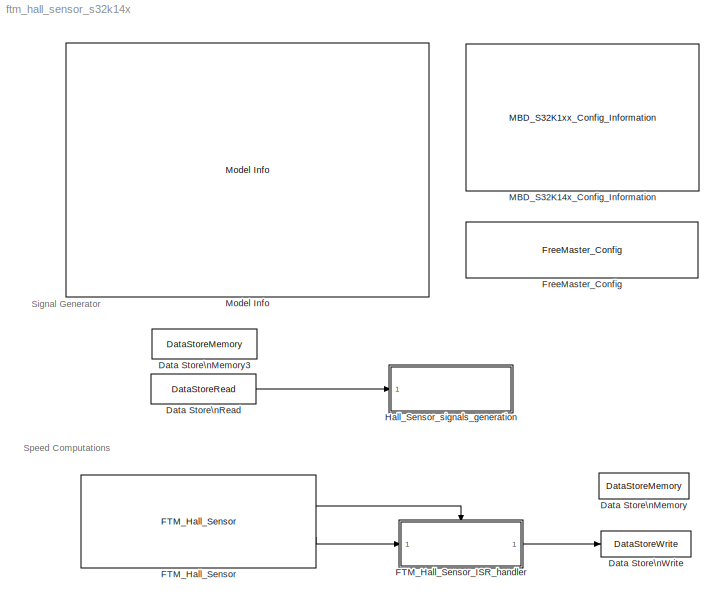
MODEL ftm_hall_sensor_s32k14x
KIND model
CONFIG InitFcn = mbd_s32k_consistency_checks(bdroot(gcs));
BLOCK [DataStoreMemory] Data Store\nMemory
  DataStoreName = Motor_Speed
  OutDataTypeStr = single
  ReadBeforeWriteMsg = warning
  SID = 96
  ShowAdditionalParam = off
  WriteAfterReadMsg = warning
  WriteAfterWriteMsg = warning
BLOCK [DataStoreMemory] Data Store\nMemory3
  DataStoreName = Speed_Command
  InitialValue = 1000
  OutDataTypeStr = single
  ReadBeforeWriteMsg = warning
  SID = 230
  ShowAdditionalParam = off
  WriteAfterReadMsg = warning
  WriteAfterWriteMsg = warning
BLOCK [DataStoreRead] Data Store\nRead
  DataStoreName = Speed_Command
  Ports = [0, 1]
  SID = 231
BLOCK [DataStoreWrite] Data Store\nWrite
  DataStoreElements = Motor_Speed
  DataStoreName = Motor_Speed
  Ports = [1]
  SID = 97
BLOCK [Reference] FTM_Hall_Sensor  REF=mbd_s32k1xx_ec_toolbox/Motor Control Blocks/FTM Blocks/FTM_Hall_Sensor
  Ports = [0, 2]
  Priority = 1
  SID = 99
  SourceBlock = mbd_s32k1xx_ec_toolbox/Motor Control Blocks/FTM Blocks/FTM_Hall_Sensor
  SourceType = FTM_s32k_hall_sensor_block
  e_mode = Rising or Falling
  filter_en = off
  filter_value = 0
  isrlevel = 2
  max_period = 0.10486
  mcuTargetUpdate = on
  pinFtm1Ch1 = PTA1: [FTM1_CH1 | FTM Channel]
  pinFtm2Ch0 = PTD10: [FTM2_CH0 | FTM Channel]
  pinFtm2Ch1 = PTD11: [FTM2_CH1 | FTM Channel]
  prescaler = 128
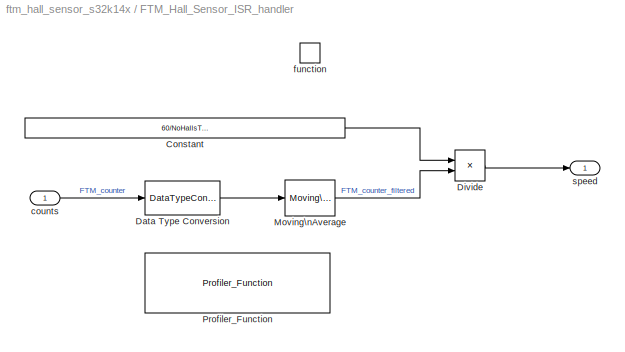
BLOCK [SubSystem] FTM_Hall_Sensor_ISR_handler
  Ports = [1, 1, 0, 1]
  RTWSystemCode = Nonreusable function
  RequestExecContextInheritance = off
  SID = 76
  TreatAsAtomicUnit = on
  Variant = off
BLOCK [Constant] FTM_Hall_Sensor_ISR_handler/Constant
  OutDataTypeStr = single
  SID = 175
  Value = 60/NoHallsTrans*EdgeMode*ClockFreq/(PP*ClockPrescaler)
BLOCK [DataTypeConversion] FTM_Hall_Sensor_ISR_handler/Data Type Conversion
  OutDataTypeStr = single
  RndMeth = Floor
  SID = 210
  SaturateOnIntegerOverflow = off
BLOCK [Product] FTM_Hall_Sensor_ISR_handler/Divide
  InputSameDT = off
  Inputs = */
  OutDataTypeStr = Inherit: Inherit via internal rule
  Ports = [2, 1]
  RndMeth = Floor
  SID = 174
  SaturateOnIntegerOverflow = off
BLOCK [Reference] FTM_Hall_Sensor_ISR_handler/Moving\nAverage  REF=dspstat3/Moving\nAverage
  ForgettingFactor = 0.9
  Method = Sliding window
  Ports = [1, 1]
  SID = 209
  SimulateUsing = Code generation
  SourceBlock = dspstat3/Moving\nAverage
  SourceProductBaseCode = DS
  SourceProductName = DSP System Toolbox
  SourceType = dsp.MovingAverage
  SpecifyWindowLength = on
  WindowLength = 12
BLOCK [Reference] FTM_Hall_Sensor_ISR_handler/Profiler_Function  REF=mbd_s32k1xx_ec_toolbox/Utility Blocks/Profiler_Function
  Ports = []
  SID = 247
  SourceBlock = mbd_s32k1xx_ec_toolbox/Utility Blocks/Profiler_Function
  SourceType = profiler_s32k_func
  profile_indx = 0
  showOut = off
BLOCK [Inport] FTM_Hall_Sensor_ISR_handler/counts
  IconDisplay = Port number
  SID = 182
BLOCK [TriggerPort] FTM_Hall_Sensor_ISR_handler/function
  Ports = []
  SID = 77
  StatesWhenEnabling = held
  TriggerType = function-call
  VariantControl = Variant
BLOCK [Outport] FTM_Hall_Sensor_ISR_handler/speed
  IconDisplay = Port number
  SID = 183
BLOCK [Reference] FreeMaster_Config  REF=mbd_s32k1xx_ec_toolbox/Utility Blocks/FreeMaster_Config
  Ports = []
  SID = 94
  SourceBlock = mbd_s32k1xx_ec_toolbox/Utility Blocks/FreeMaster_Config
  SourceType = fm_s32k_config
  baudrate = 115200
  comm_buffer_size = 255
  comm_buffer_size_auto = on
  comm_rqueue_size = 32
  comm_rqueue_size_default = on
  interface = LPUART1
  isr_prio = 10
  max_rec_vars = 8
  max_scope_vars = 8
  mode = Short Interrupt
  rec_buff_size = 1024
  rec_timebase = 10
  rec_timebase_unit = milliseconds
  rxd = PTC6: [LPUART1_RX | Receive]
  show_adv_opts = on
  txd = PTC7: [LPUART1_TX | Transmit]
  use_recorder = on
  use_scope = on
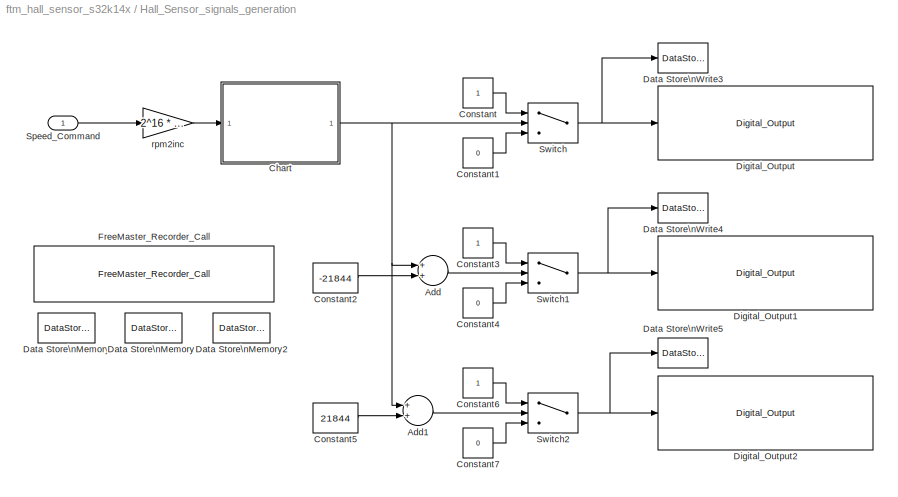
BLOCK [SubSystem] Hall_Sensor_signals_generation
  Ports = [1]
  RTWSystemCode = Nonreusable function
  RequestExecContextInheritance = off
  SID = 104
  TreatAsAtomicUnit = on
  Variant = off
BLOCK [Sum] Hall_Sensor_signals_generation/Add
  InputSameDT = off
  OutDataTypeStr = Inherit: Inherit via internal rule
  Ports = [2, 1]
  SID = 219
  SaturateOnIntegerOverflow = off
BLOCK [Sum] Hall_Sensor_signals_generation/Add1
  InputSameDT = off
  OutDataTypeStr = Inherit: Inherit via internal rule
  Ports = [2, 1]
  SID = 220
  SaturateOnIntegerOverflow = off
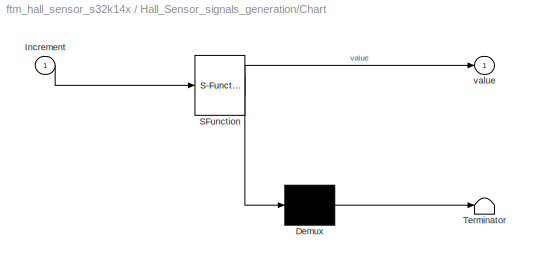
BLOCK [SubSystem] Hall_Sensor_signals_generation/Chart
  ErrorFcn = Stateflow.Translate.translate
  PermitHierarchicalResolution = ExplicitOnly
  Ports = [1, 1]
  RequestExecContextInheritance = off
  SFBlockType = Chart
  SID = 221
  TreatAsAtomicUnit = on
  Variant = off
BLOCK [Demux] Hall_Sensor_signals_generation/Chart/ Demux 
  Outputs = 1
  Ports = [1, 1]
  SID = 221::39
BLOCK [S-Function] Hall_Sensor_signals_generation/Chart/ SFunction 
  EnableBusSupport = off
  FunctionName = sf_sfun
  PortCounts = [1 2]
  Ports = [1, 2]
  SFcnIsStateOwnerBlock = off
  SFunctionDeploymentMode = off
  SID = 221::38
  Tag = Stateflow S-Function ftm_hall_sensor_s32k14x 5
BLOCK [Terminator] Hall_Sensor_signals_generation/Chart/ Terminator 
  SID = 221::40
BLOCK [Inport] Hall_Sensor_signals_generation/Chart/Increment
  IconDisplay = Port number
  SID = 221::37
BLOCK [Outport] Hall_Sensor_signals_generation/Chart/value
  IconDisplay = Port number
  SID = 221::5
BLOCK [Constant] Hall_Sensor_signals_generation/Constant
  SID = 222
BLOCK [Constant] Hall_Sensor_signals_generation/Constant1
  SID = 223
  Value = 0
BLOCK [Constant] Hall_Sensor_signals_generation/Constant2
  OutDataTypeStr = int16
  SID = 224
  Value = -21844
BLOCK [Constant] Hall_Sensor_signals_generation/Constant3
  SID = 225
BLOCK [Constant] Hall_Sensor_signals_generation/Constant4
  SID = 226
  Value = 0
BLOCK [Constant] Hall_Sensor_signals_generation/Constant5
  OutDataTypeStr = int16
  SID = 227
  Value = 21844
BLOCK [Constant] Hall_Sensor_signals_generation/Constant6
  SID = 228
BLOCK [Constant] Hall_Sensor_signals_generation/Constant7
  SID = 229
  Value = 0
BLOCK [DataStoreMemory] Hall_Sensor_signals_generation/Data Store\nMemory
  DataStoreName = Hall_A
  OutDataTypeStr = boolean
  ReadBeforeWriteMsg = warning
  SID = 124
  ShowAdditionalParam = off
  WriteAfterReadMsg = warning
  WriteAfterWriteMsg = warning
BLOCK [DataStoreMemory] Hall_Sensor_signals_generation/Data Store\nMemory1
  DataStoreName = Hall_B
  OutDataTypeStr = boolean
  ReadBeforeWriteMsg = warning
  SID = 125
  ShowAdditionalParam = off
  WriteAfterReadMsg = warning
  WriteAfterWriteMsg = warning
BLOCK [DataStoreMemory] Hall_Sensor_signals_generation/Data Store\nMemory2
  DataStoreName = Hall_C
  OutDataTypeStr = boolean
  ReadBeforeWriteMsg = warning
  SID = 126
  ShowAdditionalParam = off
  WriteAfterReadMsg = warning
  WriteAfterWriteMsg = warning
BLOCK [DataStoreWrite] Hall_Sensor_signals_generation/Data Store\nWrite3
  DataStoreName = Hall_A
  Ports = [1]
  SID = 127
BLOCK [DataStoreWrite] Hall_Sensor_signals_generation/Data Store\nWrite4
  DataStoreName = Hall_B
  Ports = [1]
  SID = 128
BLOCK [DataStoreWrite] Hall_Sensor_signals_generation/Data Store\nWrite5
  DataStoreName = Hall_C
  Ports = [1]
  SID = 129
BLOCK [Reference] Hall_Sensor_signals_generation/Digital_Output  REF=mbd_s32k1xx_ec_toolbox/GPIO Blocks/Digital_Output
  Ports = [1]
  SID = 108
  SourceBlock = mbd_s32k1xx_ec_toolbox/GPIO Blocks/Digital_Output
  SourceType = gpio_s32k_output
  drive_strength = Low
  gpio_pin = PTB14: [PTB14 | Port B I/O]
  init_val = Low
BLOCK [Reference] Hall_Sensor_signals_generation/Digital_Output1  REF=mbd_s32k1xx_ec_toolbox/GPIO Blocks/Digital_Output
  Ports = [1]
  SID = 109
  SourceBlock = mbd_s32k1xx_ec_toolbox/GPIO Blocks/Digital_Output
  SourceType = gpio_s32k_output
  drive_strength = Low
  gpio_pin = PTB15: [PTB15 | Port B I/O]
  init_val = Low
BLOCK [Reference] Hall_Sensor_signals_generation/Digital_Output2  REF=mbd_s32k1xx_ec_toolbox/GPIO Blocks/Digital_Output
  Ports = [1]
  SID = 114
  SourceBlock = mbd_s32k1xx_ec_toolbox/GPIO Blocks/Digital_Output
  SourceType = gpio_s32k_output
  drive_strength = Low
  gpio_pin = PTB16: [PTB16 | Port B I/O]
  init_val = Low
BLOCK [Reference] Hall_Sensor_signals_generation/FreeMaster_Recorder_Call  REF=mbd_s32k1xx_ec_toolbox/Utility Blocks/FreeMaster_Recorder_Call
  Ports = []
  SID = 135
  SourceBlock = mbd_s32k1xx_ec_toolbox/Utility Blocks/FreeMaster_Recorder_Call
  SourceType = fm_s32k_recorder_call
BLOCK [Inport] Hall_Sensor_signals_generation/Speed_Command
  IconDisplay = Port number
  SID = 235
BLOCK [Switch] Hall_Sensor_signals_generation/Switch
  InputSameDT = off
  OutDataTypeStr = Inherit: Inherit via back propagation
  SID = 232
  SaturateOnIntegerOverflow = off
BLOCK [Switch] Hall_Sensor_signals_generation/Switch1
  InputSameDT = off
  OutDataTypeStr = Inherit: Inherit via back propagation
  SID = 233
  SaturateOnIntegerOverflow = off
BLOCK [Switch] Hall_Sensor_signals_generation/Switch2
  InputSameDT = off
  OutDataTypeStr = Inherit: Inherit via back propagation
  SID = 234
  SaturateOnIntegerOverflow = off
BLOCK [Gain] Hall_Sensor_signals_generation/rpm2inc
  Gain = 2^16 * PP * 0.001 / 60
  OutDataTypeStr = Inherit: Inherit via back propagation
  ParamDataTypeStr = Inherit: Inherit via internal rule
  SID = 236
  SaturateOnIntegerOverflow = off
BLOCK [Reference] MBD_S32K14x_Config_Information  REF=mbd_s32k1xx_ec_toolbox/MBD_S32K1xx_Config_Information
  ADC_PcrCheckEnDis = on
  AMMCLIB_PcrCheckEnDis = on
  CMP_PcrCheckEnDis = on
  CSEc_PcrCheckEnDis = on
  ConfigParams_PcrCheckEnDis = on
  FM_PcrCheckEnDis = on
  FTM_Dual_Edge_Inputs_PcrCheckEnDis = on
  FTM_Hall_Sensor_Inputs_PcrCheckEnDis = on
  FTM_Input_Edge_Inputs_PcrCheckEnDis = on
  FTM_PWM_PcrCheckEnDis = on
  FTM_Quadrature_Inputs_PcrCheckEnDis = on
  FlexCAN_PcrCheckEnDis = on
  FlexIO_PcrCheckEnDis = on
  GPIO_InputPcrCheckEnDis = on
  GPIO_OutputPcrCheckEnDis = on
  LIN_PcrCheckEnDis = on
  LPI2C_PcrCheckEnDis = on
  LPSPI_PcrCheckEnDis = on
  LPTMR_PcrCheckEnDis = on
  LPUART_PcrCheckEnDis = on
  ModelRef_PcrCheckEnDis = on
  PDB0_PcrCheckEnDis = on
  PIT_PcrCheckEnDis = on
  Ports = []
  Profile_PcrCheckEnDis = on
  RTC_PcrCheckEnDis = on
  SBC_PcrCheckEnDis = on
  SID = 1
  SourceBlock = mbd_s32k1xx_ec_toolbox/MBD_S32K1xx_Config_Information
  SourceType = MBDTBX_EC_S32K
  WDOG_PcrCheckEnDis = on
  config_params = []
  disp_str = Target : S32K142-16KB_SRAM\nPackage : 100-pin\nSystem clock : 80 MHz\nXTAL clock : External 8 MHz\nCompiler : GCC\nTarget Type : FLASH\nDownload Code after build : (OpenSDA: E)\nStep Tick Interrupt Priority : 15
  ds_import_enable = on
  eDMA_PcrCheckEnDis = on
  gcc_target_assemble_opts = -mcpu=cortex-m4 -mthumb -mfloat-abi=hard -mfpu=fpv4-sp-d16 -g
  gcc_target_compile_opts = -mcpu=cortex-m4 -mthumb -mfloat-abi=hard -mfpu=fpv4-sp-d16 -O1 -g -gstrict-dwarf
  gcc_target_default_lcf = on
  gcc_target_link_opts = -mcpu=cortex-m4 -mthumb -mfloat-abi=hard -mfpu=fpv4-sp-d16
  gcc_target_user_lcf = S32K146_128_flash.ld
  ghs_target_assemble_opts = -cpu=cortexm4f -fpu=vfpv4_d16
  ghs_target_compile_opts = -cpu=cortexm4f -thumb -DARM_MATH_CM4 -fpu=vfpv4_d16 -fsingle -Ogeneral -Wundef -Wimplicit-int -Wshadow -Wtrigraphs --no_commons --gnu_asm -gnu99 -gdwarf-2 -G
  ghs_target_default_lcf = off
  ghs_target_link_opts = -cpu=cortexm4f -thumb -fpu=vfpv4_d16
  ghs_target_user_lcf = S32K146_128_flash.ld
  iar_target_assemble_opts = --cpu Cortex-M4F --thumb --fpu VFPv4_sp
  iar_target_compile_opts = --cpu=Cortex-M4F --thumb --fpu=VFPv4_sp -Ol -e --debug --dlib_config normal
  iar_target_default_lcf = off
  iar_target_link_opts = --no_exceptions --vfe --inline
  iar_target_user_lcf = S32K146_128_flash.icf
  mbdt_ver = 0
  mcu_steptick_prio = 15
  mcu_steptick_timer = LPIT Channel 0
  mcu_system_clock_freq = 80
  mcu_target_name = S32K146
  mcu_target_package = 64-LQFP
  mcu_target_sram_size = 128KB
  mcu_xtal_freq = External 8
  pil_download_enable = off
  pil_download_rate = 57600
  pil_opensda_drive = Custom
  pil_opensda_drive_custom = E
  pil_uart_instance = 0
  pil_uart_rx = PTA2: [LPUART0_RX | Receive]
  pil_uart_tx = PTA3: [LPUART0_TX | Transmit]
  rbl_com_port = Custom
  rbl_com_port_custom = COM1
  rbl_download_enable = on
  rbl_download_interface = OpenSDA
  rbl_restart_request = off
  rbl_start_delay = 5000000
  target_compiler = GCC
  target_memory = FLASH
BLOCK [Reference] Model Info  REF=simulink/Model-Wide\nUtilities/Model Info
  DisplayStringWithTags = Model Name: %<ModelName>\n\nDescription: %<Description>
  Frame = off
  HorizontalTextAlignment = Left
  LeftAlignmentValue = 0.02
  MaskDisplayString = Model Name: ftm_hall_sensor_s32k14x\\n\\nDescription: This model shows FlexTimer's Hall Sensor.\\n\\nThe Hall sensors signals of a running motor are emulated using the block\\ncalled Hall_Sensor_signals_generation by toggling the output of the pins\\nPTB14, PTB15, and PTB16 using the GPIO.\\n\\nThe FTM Hall sensor block has as input the pins PTA1, PTD10, and PTD11.\\n\\nFor the example to work, co...<+684ch>
  Ports = []
  SID = 92
  SourceBlock = simulink/Model-Wide\nUtilities/Model Info
  SourceProductBaseCode = SL
  SourceProductName = Simulink
  SourceType = CMBlock
ANNOTATION (root): Signal Generator
ANNOTATION (root): Speed Computations
LINE Data Store\nRead:1 -> Hall_Sensor_signals_generation:1
LINE FTM_Hall_Sensor:1 -> FTM_Hall_Sensor_ISR_handler:trigger
LINE FTM_Hall_Sensor:2 -> FTM_Hall_Sensor_ISR_handler:1
LINE FTM_Hall_Sensor_ISR_handler/Constant:1 -> FTM_Hall_Sensor_ISR_handler/Divide:1
LINE FTM_Hall_Sensor_ISR_handler/Data Type Conversion:1 -> FTM_Hall_Sensor_ISR_handler/Moving\nAverage:1
LINE FTM_Hall_Sensor_ISR_handler/Divide:1 -> FTM_Hall_Sensor_ISR_handler/speed:1
LINE FTM_Hall_Sensor_ISR_handler/Moving\nAverage:1 -> FTM_Hall_Sensor_ISR_handler/Divide:2
LINE FTM_Hall_Sensor_ISR_handler/counts:1 -> FTM_Hall_Sensor_ISR_handler/Data Type Conversion:1
LINE FTM_Hall_Sensor_ISR_handler:1 -> Data Store\nWrite:1
LINE Hall_Sensor_signals_generation/Add1:1 -> Hall_Sensor_signals_generation/Switch2:2
LINE Hall_Sensor_signals_generation/Add:1 -> Hall_Sensor_signals_generation/Switch1:2
LINE Hall_Sensor_signals_generation/Chart/ Demux :1 -> Hall_Sensor_signals_generation/Chart/ Terminator :1
LINE Hall_Sensor_signals_generation/Chart/ SFunction :1 -> Hall_Sensor_signals_generation/Chart/ Demux :1
LINE Hall_Sensor_signals_generation/Chart/ SFunction :2 -> Hall_Sensor_signals_generation/Chart/value:1
LINE Hall_Sensor_signals_generation/Chart/Increment:1 -> Hall_Sensor_signals_generation/Chart/ SFunction :1
NET Hall_Sensor_signals_generation/Chart:1 -> Hall_Sensor_signals_generation/Add1:1, Hall_Sensor_signals_generation/Add:1, Hall_Sensor_signals_generation/Switch:2
LINE Hall_Sensor_signals_generation/Constant1:1 -> Hall_Sensor_signals_generation/Switch:3
LINE Hall_Sensor_signals_generation/Constant2:1 -> Hall_Sensor_signals_generation/Add:2
LINE Hall_Sensor_signals_generation/Constant3:1 -> Hall_Sensor_signals_generation/Switch1:1
LINE Hall_Sensor_signals_generation/Constant4:1 -> Hall_Sensor_signals_generation/Switch1:3
LINE Hall_Sensor_signals_generation/Constant5:1 -> Hall_Sensor_signals_generation/Add1:2
LINE Hall_Sensor_signals_generation/Constant6:1 -> Hall_Sensor_signals_generation/Switch2:1
LINE Hall_Sensor_signals_generation/Constant7:1 -> Hall_Sensor_signals_generation/Switch2:3
LINE Hall_Sensor_signals_generation/Constant:1 -> Hall_Sensor_signals_generation/Switch:1
LINE Hall_Sensor_signals_generation/Speed_Command:1 -> Hall_Sensor_signals_generation/rpm2inc:1
NET Hall_Sensor_signals_generation/Switch1:1 -> Hall_Sensor_signals_generation/Data Store\nWrite4:1, Hall_Sensor_signals_generation/Digital_Output1:1
NET Hall_Sensor_signals_generation/Switch2:1 -> Hall_Sensor_signals_generation/Data Store\nWrite5:1, Hall_Sensor_signals_generation/Digital_Output2:1
NET Hall_Sensor_signals_generation/Switch:1 -> Hall_Sensor_signals_generation/Data Store\nWrite3:1, Hall_Sensor_signals_generation/Digital_Output:1
LINE Hall_Sensor_signals_generation/rpm2inc:1 -> Hall_Sensor_signals_generation/Chart:1
note: NET lines group one-source signal fan-out (src -> all destinations, sorted); 1:1 wires keep LINE
CHART Hall_Sensor_signals_generation/Chart states=1 transitions=2
  STATE_LABEL 'A\\ndu:\\n cntr=cntr+Increment;\\n value=cntr; \\nex:\\n cntr = -32767;'
